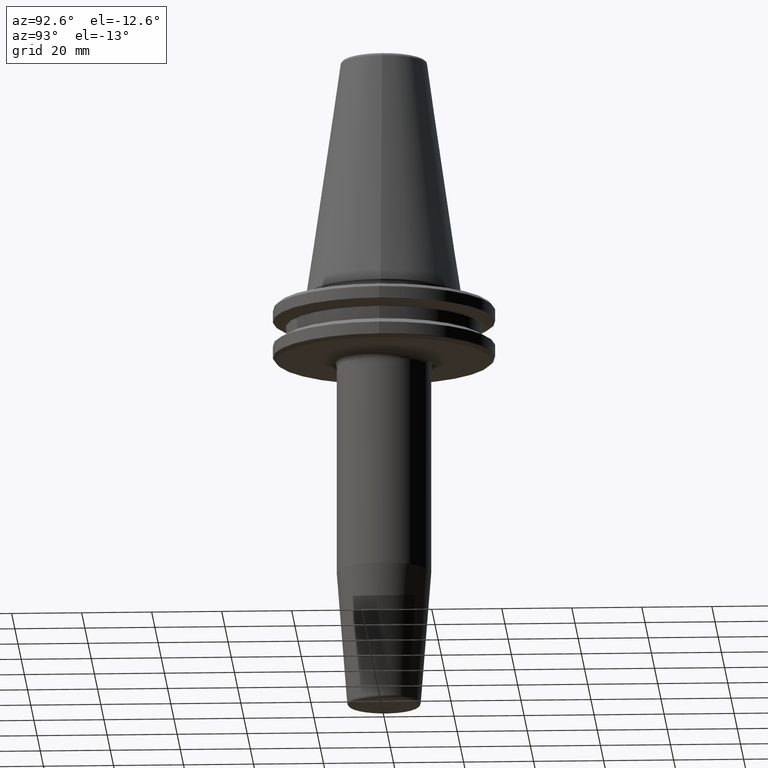
[diagram: clean part render]
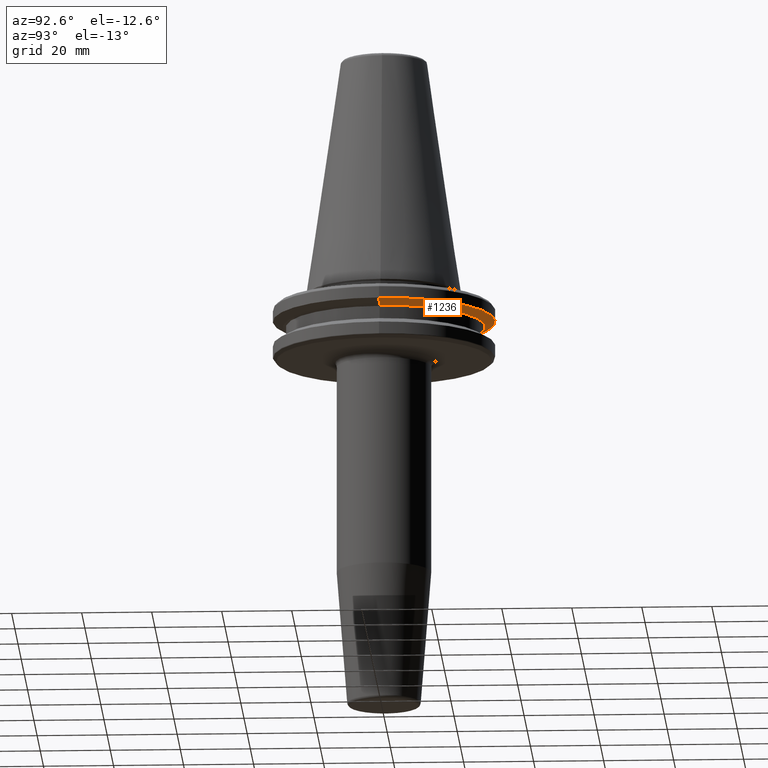
[diagram: same view with one face highlighted and labeled with its STEP entity id]
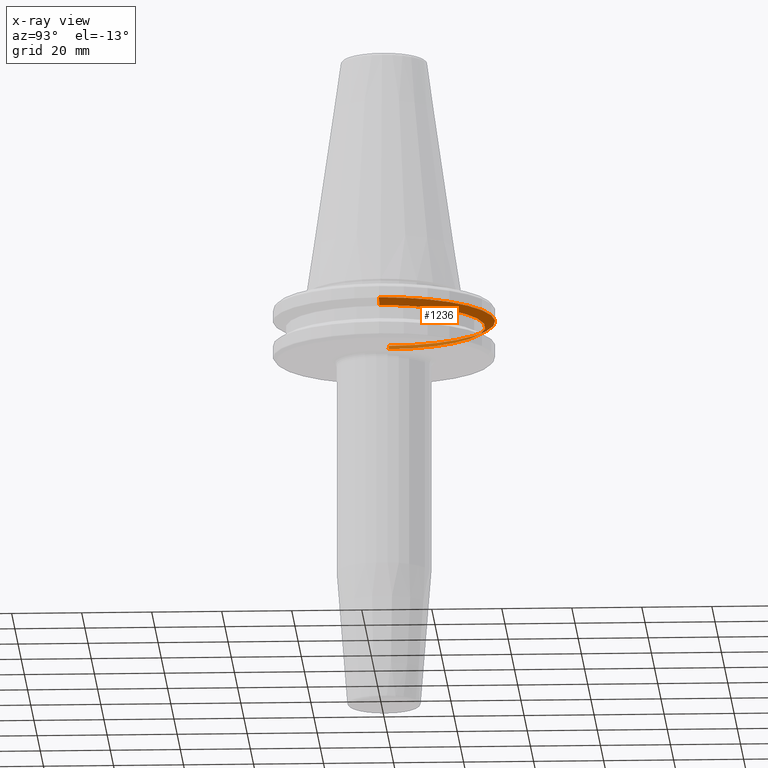
[diagram: x-ray of the same camera — body ghosted, the highlighted face saturated]
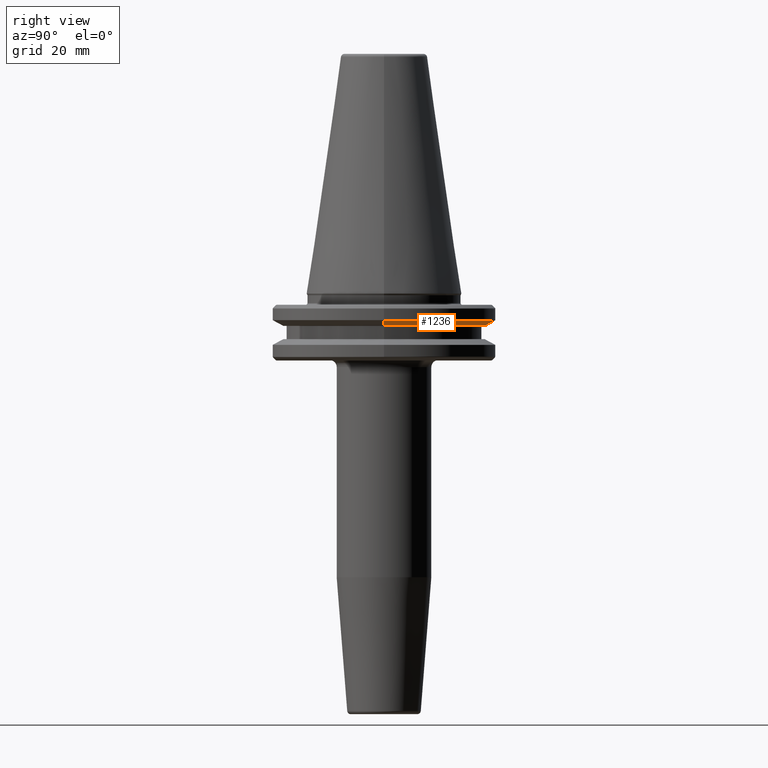
[diagram: same view with one face highlighted and labeled with its STEP entity id]
A machine part, auxiliary view. The second image highlights one B-rep face of the part: STEP entity #1236.
The next image is the same camera in x-ray: the body ghosted, the highlighted face saturated — about 20% of this face is hidden behind the body in this view.
A second angle (right view) of the same face is appended — the face is thin or edge-on in the first view.
In plain terms, the highlighted conical surface has half-angle 60 deg.
Its self-contained STEP definition (entity closure, byte-faithful):
#4 = VECTOR ( 'NONE', #1203, 1000.000000000000000 ) ;
#89 = VECTOR ( 'NONE', #721, 1000.000000000000000 ) ;
#91 = CARTESIAN_POINT ( 'NONE',  ( 28.94089653438084400, 0.0000000000000000000, -9.200000000000013500 ) ) ;
#98 = DIRECTION ( 'NONE',  ( 1.000000000000000000, 0.0000000000000000000, 0.0000000000000000000 ) ) ;
#226 = CARTESIAN_POINT ( 'NONE',  ( -31.75000000000000000, 3.888253587292846500E-015, -7.578163357943284800 ) ) ;
#238 = CARTESIAN_POINT ( 'NONE',  ( -28.94089653438084400, 3.716245608910634800E-015, -9.200000000000013500 ) ) ;
#298 = EDGE_LOOP ( 'NONE', ( #1229, #906, #616, #614 ) ) ;
#328 = VERTEX_POINT ( 'NONE', #577 ) ;
#345 = DIRECTION ( 'NONE',  ( -0.0000000000000000000, -0.0000000000000000000, 1.000000000000000000 ) ) ;
#390 = VERTEX_POINT ( 'NONE', #226 ) ;
#401 = EDGE_CURVE ( 'NONE', #747, #328, #504, .T. ) ;
#430 = CARTESIAN_POINT ( 'NONE',  ( 0.0000000000000000000, 0.0000000000000000000, -9.200000000000013500 ) ) ;
#489 = EDGE_CURVE ( 'NONE', #328, #390, #591, .T. ) ;
#504 = LINE ( 'NONE', #1111, #4 ) ;
#526 = DIRECTION ( 'NONE',  ( 1.000000000000000000, 0.0000000000000000000, 0.0000000000000000000 ) ) ;
#577 = CARTESIAN_POINT ( 'NONE',  ( 31.75000000000000000, 0.0000000000000000000, -7.578163357943284800 ) ) ;
#591 = CIRCLE ( 'NONE', #1042, 31.75000000000000000 ) ;
#598 = CARTESIAN_POINT ( 'NONE',  ( 0.0000000000000000000, 0.0000000000000000000, -7.578163357943284800 ) ) ;
#614 = ORIENTED_EDGE ( 'NONE', *, *, #401, .F. ) ;
#616 = ORIENTED_EDGE ( 'NONE', *, *, #489, .F. ) ;
#654 = CIRCLE ( 'NONE', #675, 28.94089653438084400 ) ;
#671 = LINE ( 'NONE', #1015, #89 ) ;
#675 = AXIS2_PLACEMENT_3D ( 'NONE', #430, #1109, #526 ) ;
#721 = DIRECTION ( 'NONE',  ( -0.8660254037844390400, 1.060575238724907400E-016, 0.4999999999999993300 ) ) ;
#747 = VERTEX_POINT ( 'NONE', #91 ) ;
#783 = DIRECTION ( 'NONE',  ( -0.0000000000000000000, -0.0000000000000000000, 1.000000000000000000 ) ) ;
#822 = AXIS2_PLACEMENT_3D ( 'NONE', #1211, #345, #1205 ) ;
#850 = EDGE_CURVE ( 'NONE', #747, #943, #654, .T. ) ;
#889 = EDGE_CURVE ( 'NONE', #943, #390, #671, .T. ) ;
#906 = ORIENTED_EDGE ( 'NONE', *, *, #889, .T. ) ;
#938 = CONICAL_SURFACE ( 'NONE', #822, 31.75000000000000000, 1.047197551196598500 ) ;
#943 = VERTEX_POINT ( 'NONE', #238 ) ;
#1015 = CARTESIAN_POINT ( 'NONE',  ( -31.75000000000000000, 3.888253587292846500E-015, -7.578163357943284800 ) ) ;
#1042 = AXIS2_PLACEMENT_3D ( 'NONE', #598, #783, #98 ) ;
#1109 = DIRECTION ( 'NONE',  ( -0.0000000000000000000, -0.0000000000000000000, 1.000000000000000000 ) ) ;
#1111 = CARTESIAN_POINT ( 'NONE',  ( 31.75000000000000000, 0.0000000000000000000, -7.578163357943284800 ) ) ;
#1203 = DIRECTION ( 'NONE',  ( 0.8660254037844390400, 0.0000000000000000000, 0.4999999999999993300 ) ) ;
#1205 = DIRECTION ( 'NONE',  ( 1.000000000000000000, 0.0000000000000000000, 0.0000000000000000000 ) ) ;
#1211 = CARTESIAN_POINT ( 'NONE',  ( 0.0000000000000000000, 0.0000000000000000000, -7.578163357943284800 ) ) ;
#1229 = ORIENTED_EDGE ( 'NONE', *, *, #850, .T. ) ;
#1236 = ADVANCED_FACE ( 'NONE', ( #1240 ), #938, .T. ) ;
#1240 = FACE_OUTER_BOUND ( 'NONE', #298, .T. ) ;